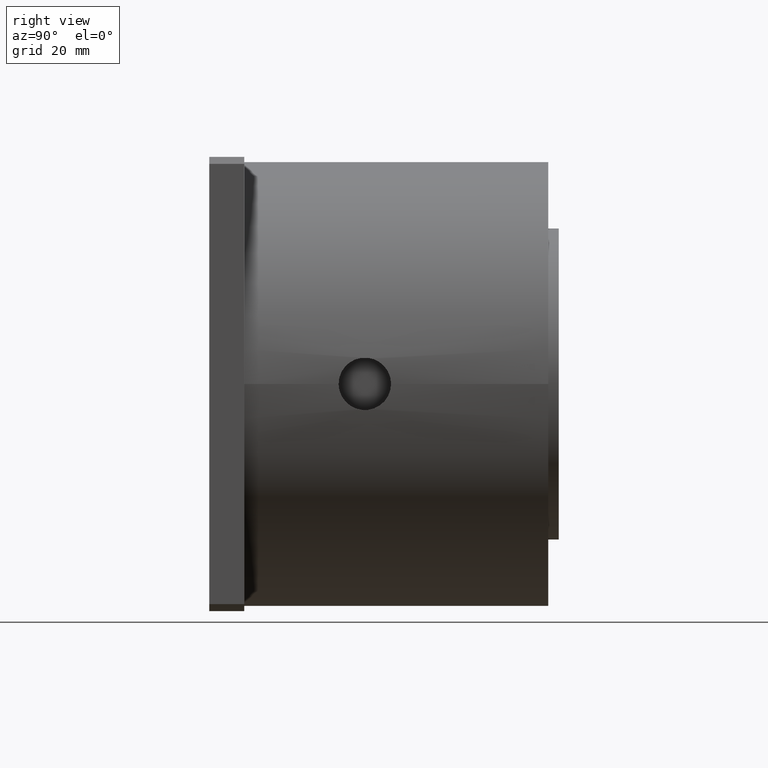
[diagram: clean part render]
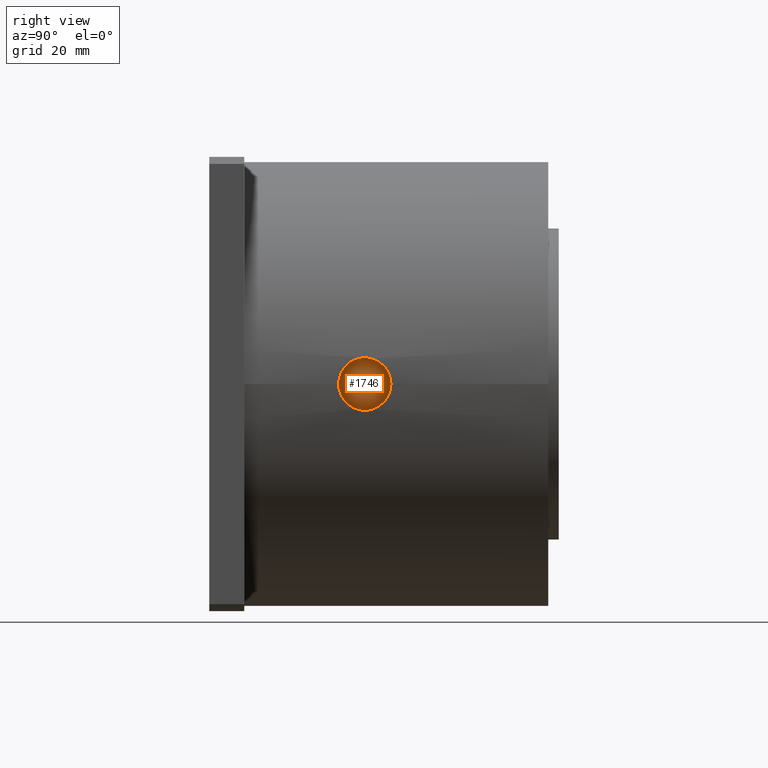
[diagram: same view with one face highlighted and labeled with its STEP entity id]
A machine part, right view. The second image highlights one B-rep face of the part: STEP entity #1746.
In plain terms, the highlighted planar face has unit normal (-1, 0, 0).
Its self-contained STEP definition (entity closure, byte-faithful):
#958=CARTESIAN_POINT('',(4.85E1,-3.45E1,0.E0));
#959=DIRECTION('',(-1.E0,0.E0,0.E0));
#960=DIRECTION('',(0.E0,-1.E0,0.E0));
#961=AXIS2_PLACEMENT_3D('',#958,#959,#960);
#966=CARTESIAN_POINT('',(4.85E1,-3.45E1,0.E0));
#967=DIRECTION('',(-1.E0,0.E0,0.E0));
#968=DIRECTION('',(0.E0,1.E0,0.E0));
#969=AXIS2_PLACEMENT_3D('',#966,#967,#968);
#1320=CARTESIAN_POINT('',(4.85E1,-4.2E1,0.E0));
#1321=CARTESIAN_POINT('',(4.85E1,-2.7E1,0.E0));
#1322=VERTEX_POINT('',#1320);
#1323=VERTEX_POINT('',#1321);
#1737=CARTESIAN_POINT('',(4.85E1,-3.45E1,0.E0));
#1738=DIRECTION('',(-1.E0,0.E0,0.E0));
#1739=DIRECTION('',(0.E0,-1.E0,0.E0));
#1740=AXIS2_PLACEMENT_3D('',#1737,#1738,#1739);
#1741=PLANE('',#1740);
#1742=ORIENTED_EDGE('',*,*,#1415,.T.);
#1743=ORIENTED_EDGE('',*,*,#1430,.T.);
#1744=EDGE_LOOP('',(#1742,#1743));
#1745=FACE_OUTER_BOUND('',#1744,.F.);
#962=CIRCLE('',#961,7.5E0);
#970=CIRCLE('',#969,7.5E0);
#1415=EDGE_CURVE('',#1322,#1323,#962,.T.);
#1430=EDGE_CURVE('',#1323,#1322,#970,.T.);
#1746=ADVANCED_FACE('',(#1745),#1741,.F.);